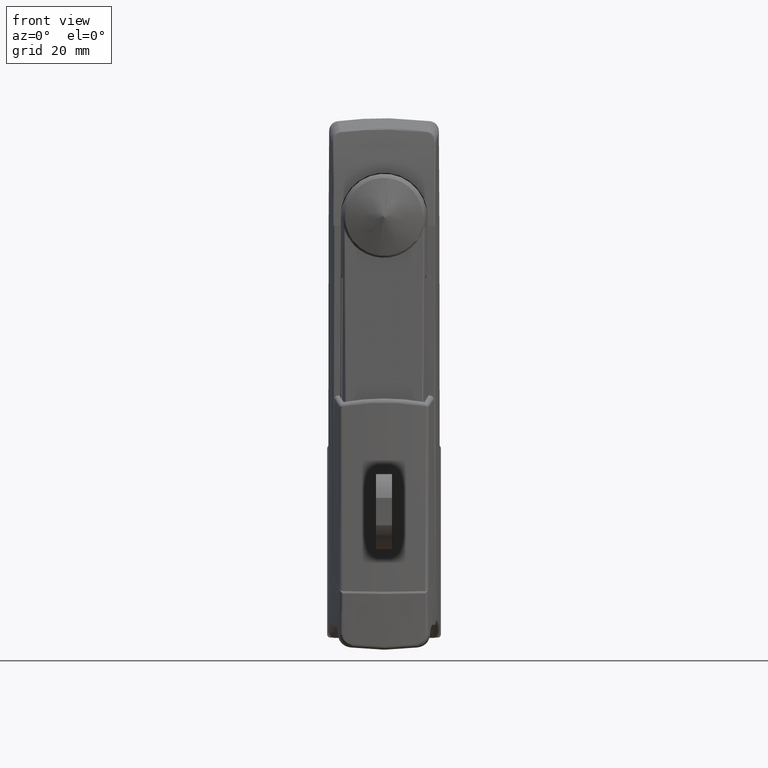
[diagram: clean part render]
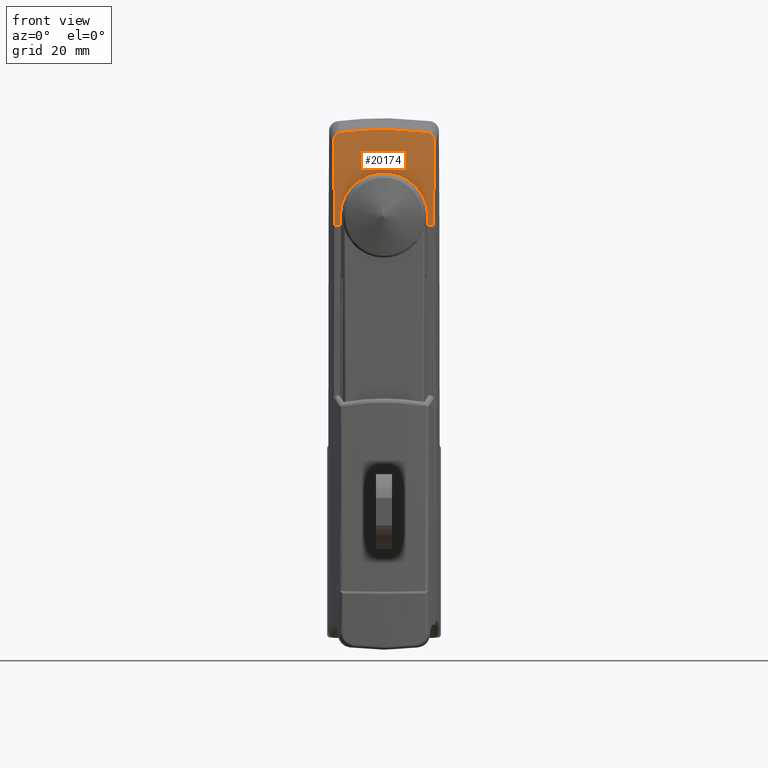
[diagram: same view with one face highlighted and labeled with its STEP entity id]
A machine part, front view. The second image highlights one B-rep face of the part: STEP entity #20174.
In plain terms, the highlighted face is a freeform B-spline surface patch.
Its self-contained STEP definition (entity closure, byte-faithful):
#13841=CARTESIAN_POINT('',(-12.441076893168200,-13.500000000000000,-2.517986E-013));
#13842=VERTEX_POINT('',#13841);
#13843=CARTESIAN_POINT('',(-12.604473546541300,-13.499300596486400,-2.741120213272555));
#13844=VERTEX_POINT('',#13843);
#13845=CARTESIAN_POINT('',(-12.441076893168200,-13.500000000000000,-2.517986E-013));
#13846=CARTESIAN_POINT('',(-12.496062418305049,-13.499600391658721,-0.913675699919689));
#13847=CARTESIAN_POINT('',(-12.550267995340629,-13.499434582657599,-1.827397951766694));
#13848=CARTESIAN_POINT('',(-12.604473546541300,-13.499300596486400,-2.741120213272555));
#13849=QUASI_UNIFORM_CURVE('',3,(#13845,#13846,#13847,#13848),.UNSPECIFIED.,.F.,.U.);
#13850=EDGE_CURVE('',#13842,#13844,#13849,.T.);
#13905=CARTESIAN_POINT('',(-12.441785726196020,13.499994861165360,-0.011779155682424));
#13906=VERTEX_POINT('',#13905);
#13907=CARTESIAN_POINT('',(-12.441076893168200,-13.500000000000000,-2.517986E-013));
#13908=CARTESIAN_POINT('',(-12.414252144722440,-13.500000000000011,0.445737687548453));
#13909=CARTESIAN_POINT('',(-12.387466372577190,-13.477981251342619,0.887720867682708));
#13910=CARTESIAN_POINT('',(-12.333803033641800,-13.391445507905210,1.764430264778949));
#13911=CARTESIAN_POINT('',(-12.306925510421090,-13.326924183553119,2.199155745726576));
#13912=CARTESIAN_POINT('',(-12.252938259727150,-13.155649267866769,3.061386373689502));
#13913=CARTESIAN_POINT('',(-12.225828475865200,-13.048897323626690,3.488891798224023));
#13914=CARTESIAN_POINT('',(-12.191726640621869,-12.888470168202920,4.018655519229677));
#13915=CARTESIAN_POINT('',(-12.184895618329460,-12.855032269994711,4.124376835188018));
#13916=CARTESIAN_POINT('',(-12.171210836618140,-12.785423876305771,4.335351801691670));
#13917=CARTESIAN_POINT('',(-12.164348582782759,-12.749206398792881,4.440735209422015));
#13918=CARTESIAN_POINT('',(-12.143789221727401,-12.636755489018860,4.755205853339946));
#13919=CARTESIAN_POINT('',(-12.130150198148559,-12.556909809155529,4.962147987044618));
#13920=CARTESIAN_POINT('',(-12.089422544274839,-12.303035813624030,5.575024320222656));
#13921=CARTESIAN_POINT('',(-12.035619737726730,-11.926373351094760,6.371030094525832));
#13922=CARTESIAN_POINT('',(-11.982796827669761,-11.474821152400320,7.125507671422891));
#13923=CARTESIAN_POINT('',(-11.943592080778631,-11.107795524635760,7.675641575572165));
#13924=CARTESIAN_POINT('',(-11.930593128195749,-10.980718464505260,7.856394275046117));
#13925=CARTESIAN_POINT('',(-11.911209492823019,-10.782886788211281,8.123523235828444));
#13926=CARTESIAN_POINT('',(-11.904767450880071,-10.715739648572120,8.211899229285896));
#13927=CARTESIAN_POINT('',(-11.891923983209940,-10.579012909516820,8.387302965089747));
#13928=CARTESIAN_POINT('',(-11.885514550365279,-10.509342078223220,8.474438445230355));
#13929=CARTESIAN_POINT('',(-11.853732871074630,-10.156600395826739,8.904578286773209));
#13930=CARTESIAN_POINT('',(-11.829075599020509,-9.859630427373491,9.232095379348401));
#13931=CARTESIAN_POINT('',(-11.781405591018579,-9.237055632552394,9.854983536206815));
#13932=CARTESIAN_POINT('',(-11.758392966244440,-8.911448423107171,10.150351923204401));
#13933=CARTESIAN_POINT('',(-11.714200205685110,-8.231662354058360,10.709028529767620));
#13934=CARTESIAN_POINT('',(-11.693019843875151,-7.877485156696547,10.972338605241159));
#13935=CARTESIAN_POINT('',(-11.667857399494009,-7.416426046130428,11.280910263855329));
#13936=CARTESIAN_POINT('',(-11.662890771010931,-7.323295191857604,11.341593890238981));
#13937=CARTESIAN_POINT('',(-11.653094305644560,-7.135174450511948,11.460876493486539));
#13938=CARTESIAN_POINT('',(-11.648264467261210,-7.040175856653471,11.519474770056860));
#13939=CARTESIAN_POINT('',(-11.634066938907880,-6.753991320983737,11.691154841092841));
#13940=CARTESIAN_POINT('',(-11.624963107805851,-6.561088898465243,11.800466065578410));
#13941=CARTESIAN_POINT('',(-11.598756971722430,-5.976159698507789,12.113259794607600));
#13942=CARTESIAN_POINT('',(-11.566759260552990,-5.179691809514877,12.490016894328241));
#13943=CARTESIAN_POINT('',(-11.540978909739319,-4.350590750346052,12.787402874228629));
#13944=CARTESIAN_POINT('',(-11.524146069242910,-3.716356621535458,12.980274322901510));
#13945=CARTESIAN_POINT('',(-11.518952685101249,-3.502873520863567,13.039527859132940));
#13946=CARTESIAN_POINT('',(-11.509435868369991,-3.071688990839381,13.147780665794031));
#13947=CARTESIAN_POINT('',(-11.505104482270291,-2.853440414598430,13.196869518427221));
#13948=CARTESIAN_POINT('',(-11.493582405592910,-2.198906821494902,13.327143652508990));
#13949=CARTESIAN_POINT('',(-11.487821089226321,-1.761425580655634,13.391848004033580));
#13950=CARTESIAN_POINT('',(-11.480120734162760,-0.884275104947150,13.478214665826370));
#13951=CARTESIAN_POINT('',(-11.478181844318421,-0.444605720709777,13.499874027802010));
#13952=CARTESIAN_POINT('',(-11.478159418465800,0.436922492519624,13.500124879012850));
#13953=CARTESIAN_POINT('',(-11.480075705780440,0.878781162329847,13.478719508647590));
#13954=CARTESIAN_POINT('',(-11.484932831433079,1.432513627495197,13.424242555998999));
#13955=CARTESIAN_POINT('',(-11.486028937713421,1.543459853847605,13.411941487358410));
#13956=CARTESIAN_POINT('',(-11.488462478148801,1.764873197774957,13.384605536830010));
#13957=CARTESIAN_POINT('',(-11.492468627647010,2.095798290109252,13.339569457998129));
#13958=CARTESIAN_POINT('',(-11.497523685494389,2.423182128504444,13.282583272837041));
#13959=CARTESIAN_POINT('',(-11.508988659280851,3.073309365635537,13.152949846103461));
#13960=CARTESIAN_POINT('',(-11.527884675727369,3.927793048614036,12.938416522241280));
#13961=CARTESIAN_POINT('',(-11.553625846099850,4.757883489473850,12.641534228385710));
#13962=CARTESIAN_POINT('',(-11.575401577124859,5.371155697932156,12.387479453273970));
#13963=CARTESIAN_POINT('',(-11.583072235436420,5.574027726099676,12.297552968636380));
#13964=CARTESIAN_POINT('',(-11.595188429240769,5.875962834881095,12.154647641541590));
#13965=CARTESIAN_POINT('',(-11.599333245401320,5.976308412841293,12.105623963519911));
#13966=CARTESIAN_POINT('',(-11.607779369113100,6.175139502458459,12.005417357040210));
#13967=CARTESIAN_POINT('',(-11.612085037108439,6.273739450039710,11.954183269236010));
#13968=CARTESIAN_POINT('',(-11.634013275017310,6.762705644385799,11.692419831277791));
#13969=CARTESIAN_POINT('',(-11.652832340215079,7.141001322415601,11.465153151335400));
#13970=CARTESIAN_POINT('',(-11.692740318829300,7.872478733228609,10.975778572164280));
#13971=CARTESIAN_POINT('',(-11.713829438294150,8.225659198101274,10.713668921278691));
#13972=CARTESIAN_POINT('',(-11.758072079991610,8.906807708047539,10.154454561912511));
#13973=CARTESIAN_POINT('',(-11.781225464985321,9.234778054755710,9.857353052236038));
#13974=CARTESIAN_POINT('',(-11.811376248289790,9.628456313169689,9.463362904258547));
#13975=CARTESIAN_POINT('',(-11.817457275980530,9.706244272720840,9.383558334592900));
#13976=CARTESIAN_POINT('',(-11.829673484373769,9.859375969274611,9.222529501005912));
#13977=CARTESIAN_POINT('',(-11.848098751003750,10.085663814261880,8.978599561839989));
#13978=CARTESIAN_POINT('',(-11.866811652959781,10.301834277159500,8.727586899909579));
#13979=CARTESIAN_POINT('',(-11.904587898517731,10.720885507383491,8.216256094822064));
#13980=CARTESIAN_POINT('',(-11.930236919169451,10.982564756285059,7.862983426025016));
#13981=CARTESIAN_POINT('',(-11.982348817039981,11.470827024866839,7.131855603524474));
#13982=CARTESIAN_POINT('',(-12.008811709150020,11.697411113578170,6.754001201450973));
#13983=CARTESIAN_POINT('',(-12.049087307138500,12.010409838658230,6.168390815664765));
#13984=CARTESIAN_POINT('',(-12.062619102681531,12.110318787578260,5.969908582333026));
#13985=CARTESIAN_POINT('',(-12.089842506512420,12.300702187714760,5.567077806833104));
#13986=CARTESIAN_POINT('',(-12.103438561285969,12.390515581322660,5.364145627205898));
#13987=CARTESIAN_POINT('',(-12.144183727770841,12.644158483120320,4.750894123975366));
#13988=CARTESIAN_POINT('',(-12.171288394276679,12.792228214941810,4.336130312759088));
#13989=CARTESIAN_POINT('',(-12.225438165321920,13.047153711042400,3.494983380906753));
#13990=CARTESIAN_POINT('',(-12.252483346048241,13.154008284917630,3.068599929658487));
#13991=CARTESIAN_POINT('',(-12.293084300569490,13.283109660842261,2.420239163808920));
#13992=CARTESIAN_POINT('',(-12.306623830703771,13.320937542342190,2.202652083566240));
#13993=CARTESIAN_POINT('',(-12.326954845641280,13.369751060183660,1.874038390954927));
#13994=CARTESIAN_POINT('',(-12.333735492997810,13.384700232474550,1.764128142465748));
#13995=CARTESIAN_POINT('',(-12.347306497835890,13.411926982491281,1.543555322159270));
#13996=CARTESIAN_POINT('',(-12.354103086026401,13.424213853387300,1.432790800139735));
#13997=CARTESIAN_POINT('',(-12.388027086102280,13.478749706204869,0.878532465269332));
#13998=CARTESIAN_POINT('',(-12.414964257310411,13.500383780771280,0.433958452592675));
#13999=CARTESIAN_POINT('',(-12.441785726191799,13.499994861165360,-0.011779155682563));
#14000=B_SPLINE_CURVE_WITH_KNOTS('',3,(#13907,#13908,#13909,#13910,#13911,#13912,#13913,#13914,#13915,#13916,#13917,#13918,#13919,#13920,#13921,#13922,#13923,#13924,#13925,#13926,#13927,#13928,#13929,#13930,#13931,#13932,#13933,#13934,#13935,#13936,#13937,#13938,#13939,#13940,#13941,#13942,#13943,#13944,#13945,#13946,#13947,#13948,#13949,#13950,#13951,#13952,#13953,#13954,#13955,#13956,#13957,#13958,#13959,#13960,#13961,#13962,#13963,#13964,#13965,#13966,#13967,#13968,#13969,#13970,#13971,#13972,#13973,#13974,#13975,#13976,#13977,#13978,#13979,#13980,#13981,#13982,#13983,#13984,#13985,#13986,#13987,#13988,#13989,#13990,#13991,#13992,#13993,#13994,#13995,#13996,#13997,#13998,#13999),.UNSPECIFIED.,.F.,.U.,(4,2,2,2,2,2,2,1,2,2,2,2,2,2,2,2,2,2,1,2,2,2,2,2,2,2,1,2,1,2,2,2,2,2,2,2,2,1,2,2,2,2,2,2,2,2,2,2,4),(0.0,0.031250000000000,0.062500000000000,0.093750000000000,0.101562500000000,0.109375000000000,0.125000000000000,0.156250000000000,0.187500000000000,0.203125000000000,0.210937500000000,0.218750000000000,0.250000000000000,0.281250000000000,0.312500000000000,0.320312500000000,0.328125000000000,0.343750000000000,0.375000000000000,0.406250000000000,0.421875000000000,0.437499999999999,0.468749999999999,0.499999999999999,0.531249999999999,0.539062499999999,0.546874999999999,0.562499999999999,0.593749999999999,0.624999999999999,0.640624999999999,0.648437499999999,0.656249999999999,0.687499999999999,0.718749999999998,0.749999999999998,0.757812499999998,0.765624999999998,0.781249999999998,0.812499999999999,0.843749999999999,0.859374999999999,0.874999999999999,0.906249999999999,0.937500000000000,0.953125000000000,0.960937500000000,0.968750000000000,1.0),.UNSPECIFIED.);
#14001=EDGE_CURVE('',#13842,#13906,#14000,.T.);
#14031=CARTESIAN_POINT('',(-12.604473546544220,13.499300596486400,-2.741120213272550));
#14032=VERTEX_POINT('',#14031);
#14033=CARTESIAN_POINT('',(-12.604473546544220,13.499300596486400,-2.741120213272550));
#14034=CARTESIAN_POINT('',(-12.550500935616601,13.499434006872010,-1.831324536929526));
#14035=CARTESIAN_POINT('',(-12.496528299406620,13.499598967070799,-0.921528870118750));
#14036=CARTESIAN_POINT('',(-12.441785726191799,13.499994861165360,-0.011779155682567));
#14037=QUASI_UNIFORM_CURVE('',3,(#14033,#14034,#14035,#14036),.UNSPECIFIED.,.F.,.U.);
#14038=EDGE_CURVE('',#14032,#13906,#14037,.T.);
#14486=CARTESIAN_POINT('',(-10.417136814291799,-15.503356224841900,23.088987094582549));
#14487=VERTEX_POINT('',#14486);
#14501=CARTESIAN_POINT('',(-12.604473546541300,-15.310058754993280,-2.741120213272555));
#14502=VERTEX_POINT('',#14501);
#14503=CARTESIAN_POINT('',(-12.604473546541300,-15.310058754993280,-2.741120213272555));
#14504=CARTESIAN_POINT('',(-12.348544517713250,-15.321833988952170,1.572977620361825));
#14505=CARTESIAN_POINT('',(-12.092543342613290,-15.333546171655620,5.887070754894667));
#14506=CARTESIAN_POINT('',(-11.585845085509259,-15.374315727719191,12.349623906542901));
#14507=CARTESIAN_POINT('',(-11.396470550018121,-15.391771147511450,14.502678259580360));
#14508=CARTESIAN_POINT('',(-10.957104753951549,-15.438111285098930,18.801493855034892));
#14509=CARTESIAN_POINT('',(-10.707093263011890,-15.466999861549510,20.947488058295221));
#14510=CARTESIAN_POINT('',(-10.417136814291799,-15.503356224841900,23.088987094582549));
#14511=B_SPLINE_CURVE_WITH_KNOTS('',3,(#14503,#14504,#14505,#14506,#14507,#14508,#14509,#14510),.UNSPECIFIED.,.F.,.U.,(4,2,2,4),(0.0,0.500000000000000,0.750000000000000,1.0),.UNSPECIFIED.);
#14512=EDGE_CURVE('',#14502,#14487,#14511,.T.);
#14769=CARTESIAN_POINT('',(-10.006475827347540,-13.463598780435740,25.938795160701300));
#14770=VERTEX_POINT('',#14769);
#14784=CARTESIAN_POINT('',(-10.417136814291799,-15.503356224841900,23.088987094582549));
#14785=CARTESIAN_POINT('',(-10.395452922897640,-15.506074898858270,23.249135395227441));
#14786=CARTESIAN_POINT('',(-10.373668517732620,-15.498733029071561,23.408351876220419));
#14787=CARTESIAN_POINT('',(-10.340856117206060,-15.471885559840580,23.645713058888859));
#14788=CARTESIAN_POINT('',(-10.329896160309881,-15.460286420895841,23.724588557550060));
#14789=CARTESIAN_POINT('',(-10.307935840207470,-15.431510510489030,23.881825058006090));
#14790=CARTESIAN_POINT('',(-10.296938264572240,-15.414315951530490,23.960163066730821));
#14791=CARTESIAN_POINT('',(-10.264282945576980,-15.354605376506120,24.191617087809039));
#14792=CARTESIAN_POINT('',(-10.242832226095240,-15.303882134131131,24.342107279724580));
#14793=CARTESIAN_POINT('',(-10.211260112448951,-15.209784703400230,24.561562614756021));
#14794=CARTESIAN_POINT('',(-10.200828545992250,-15.175369021767960,24.633724328865870));
#14795=CARTESIAN_POINT('',(-10.180238739613500,-15.100128718778761,24.775513973003079));
#14796=CARTESIAN_POINT('',(-10.170186058837050,-15.059693729126680,24.844415793238301));
#14797=CARTESIAN_POINT('',(-10.140805622859141,-14.929664824734850,25.044948364036820));
#14798=CARTESIAN_POINT('',(-10.122244800284120,-14.831446405557150,25.170476313837732));
#14799=CARTESIAN_POINT('',(-10.096300115388090,-14.664244574793999,25.344724025922361));
#14800=CARTESIAN_POINT('',(-10.088067394413761,-14.605768632018171,25.399798300663608));
#14801=CARTESIAN_POINT('',(-10.072583541832140,-14.483966049605201,25.503057147347050));
#14802=CARTESIAN_POINT('',(-10.065314178428020,-14.420524697851620,25.551364066493839));
#14803=CARTESIAN_POINT('',(-10.051784016326121,-14.288332549910701,25.641036055306170));
#14804=CARTESIAN_POINT('',(-10.045522893257051,-14.219583335465900,25.682403189431390));
#14805=CARTESIAN_POINT('',(-10.034105103379980,-14.076375124450470,25.757675168950090));
#14806=CARTESIAN_POINT('',(-10.029048064547951,-14.003132746495220,25.790923974404780));
#14807=CARTESIAN_POINT('',(-10.015893402989519,-13.779368369212911,25.877277371018319));
#14808=CARTESIAN_POINT('',(-10.009765352074110,-13.624496862799470,25.917310796196301));
#14809=CARTESIAN_POINT('',(-10.006475827347520,-13.463598780435740,25.938795160701300));
#14810=B_SPLINE_CURVE_WITH_KNOTS('',3,(#14784,#14785,#14786,#14787,#14788,#14789,#14790,#14791,#14792,#14793,#14794,#14795,#14796,#14797,#14798,#14799,#14800,#14801,#14802,#14803,#14804,#14805,#14806,#14807,#14808,#14809),.UNSPECIFIED.,.F.,.U.,(4,2,2,2,2,2,2,2,2,2,2,2,4),(0.0,0.124999999999998,0.187499999999997,0.249999999999996,0.374999999999994,0.437499999999995,0.499999999999995,0.624999999999996,0.687499999999997,0.749999999999997,0.812499999999997,0.874999999999998,1.0),.UNSPECIFIED.);
#14811=EDGE_CURVE('',#14487,#14770,#14810,.T.);
#15123=CARTESIAN_POINT('',(-10.006475826175301,13.463598723099359,25.938795168357299));
#15124=VERTEX_POINT('',#15123);
#15138=CARTESIAN_POINT('',(-10.006475827347540,-13.463598780435740,25.938795160701300));
#15139=CARTESIAN_POINT('',(-9.960806492308553,-11.229808478995670,26.237068231199132));
#15140=CARTESIAN_POINT('',(-9.925708758808108,-8.990909350626337,26.460899215403991));
#15141=CARTESIAN_POINT('',(-9.890424655944223,-5.624881558303835,26.684981170970708));
#15142=CARTESIAN_POINT('',(-9.881546653959738,-4.501592406591473,26.741062221971038));
#15143=CARTESIAN_POINT('',(-9.869687614024887,-2.252446358531091,26.815900076570490));
#15144=CARTESIAN_POINT('',(-9.866706182471329,-1.126414455465795,26.834657080539291));
#15145=CARTESIAN_POINT('',(-9.866709081689198,2.254474013018780,26.834638822070080));
#15146=CARTESIAN_POINT('',(-9.878667165394589,4.503332921698160,26.759650640243720));
#15147=CARTESIAN_POINT('',(-9.925710682928568,8.991002133226283,26.460886889149322));
#15148=CARTESIAN_POINT('',(-9.960806512936891,11.229809479070530,26.237068096374831));
#15149=CARTESIAN_POINT('',(-10.006475826175301,13.463598723099359,25.938795168357299));
#15150=B_SPLINE_CURVE_WITH_KNOTS('',3,(#15138,#15139,#15140,#15141,#15142,#15143,#15144,#15145,#15146,#15147,#15148,#15149),.UNSPECIFIED.,.F.,.U.,(4,2,2,2,2,4),(0.0,0.250000000000000,0.375000000000000,0.500000000000000,0.750000000000000,1.0),.UNSPECIFIED.);
#15151=EDGE_CURVE('',#14770,#15124,#15150,.T.);
#15395=CARTESIAN_POINT('',(-10.417136811681379,15.503356159998249,23.088987113862149));
#15396=VERTEX_POINT('',#15395);
#15410=CARTESIAN_POINT('',(-10.006475826175301,13.463598723099359,25.938795168357299));
#15411=CARTESIAN_POINT('',(-10.008126599953609,13.544341796485741,25.928013724682401));
#15412=CARTESIAN_POINT('',(-10.010525590981130,13.624477268329160,25.912339247582072));
#15413=CARTESIAN_POINT('',(-10.016672055514061,13.780494891414740,25.872115841644899));
#15414=CARTESIAN_POINT('',(-10.020422585502160,13.856707465813130,25.847546923239420));
#15415=CARTESIAN_POINT('',(-10.029215492214210,14.005673474009880,25.789823615283101));
#15416=CARTESIAN_POINT('',(-10.034258029678000,14.078426509249740,25.756668238332299));
#15417=CARTESIAN_POINT('',(-10.042769894627650,14.184984883224400,25.700551742098060));
#15418=CARTESIAN_POINT('',(-10.045765447176290,14.220075058592110,25.680780465709230));
#15419=CARTESIAN_POINT('',(-10.052072583803330,14.289391792650980,25.639093457698952));
#15420=CARTESIAN_POINT('',(-10.055385502896851,14.323613807558029,25.617168584593909));
#15421=CARTESIAN_POINT('',(-10.072498654759240,14.490323269727980,25.503741768271379));
#15422=CARTESIAN_POINT('',(-10.088093743817780,14.611649380979699,25.399850759067760));
#15423=CARTESIAN_POINT('',(-10.109606394887919,14.749920903845590,25.255354322645111));
#15424=CARTESIAN_POINT('',(-10.114010941370980,14.776899168021281,25.225716049019180));
#15425=CARTESIAN_POINT('',(-10.123018915389631,14.829520621573851,25.164979731978331));
#15426=CARTESIAN_POINT('',(-10.127634311724981,14.855226101427791,25.133800598846399));
#15427=CARTESIAN_POINT('',(-10.141678266648251,14.929857117530450,25.038728997547871));
#15428=CARTESIAN_POINT('',(-10.151278446185110,14.976199384138630,24.973480565559090));
#15429=CARTESIAN_POINT('',(-10.180703834015921,15.105851627558501,24.772600204070059));
#15430=CARTESIAN_POINT('',(-10.201148398488170,15.179854275461960,24.631869886862280));
#15431=CARTESIAN_POINT('',(-10.232843292595589,15.274004148509750,24.411528443795561));
#15432=CARTESIAN_POINT('',(-10.243629874671861,15.302665697194920,24.336186961820140));
#15433=CARTESIAN_POINT('',(-10.265241203088980,15.353791648003099,24.184481009025259));
#15434=CARTESIAN_POINT('',(-10.276063863866311,15.376289945051649,24.108135528946772));
#15435=CARTESIAN_POINT('',(-10.308563086012290,15.435268386994080,23.877728242998430));
#15436=CARTESIAN_POINT('',(-10.330269637618921,15.463283978634310,23.722303797456139));
#15437=CARTESIAN_POINT('',(-10.373698213945950,15.498696276383310,23.408127628569890));
#15438=CARTESIAN_POINT('',(-10.395420658549360,15.506078879069911,23.249373686295051));
#15439=CARTESIAN_POINT('',(-10.417136811681360,15.503356159998249,23.088987113862149));
#15440=B_SPLINE_CURVE_WITH_KNOTS('',3,(#15410,#15411,#15412,#15413,#15414,#15415,#15416,#15417,#15418,#15419,#15420,#15421,#15422,#15423,#15424,#15425,#15426,#15427,#15428,#15429,#15430,#15431,#15432,#15433,#15434,#15435,#15436,#15437,#15438,#15439),.UNSPECIFIED.,.F.,.U.,(4,2,2,2,2,2,2,2,2,2,2,2,2,2,4),(0.0,0.062500000000004,0.125000000000009,0.187500000000013,0.218750000000015,0.250000000000016,0.375000000000019,0.406250000000020,0.437500000000020,0.500000000000018,0.625000000000015,0.687500000000013,0.750000000000010,0.875000000000005,1.0),.UNSPECIFIED.);
#15441=EDGE_CURVE('',#15124,#15396,#15440,.T.);
#15734=CARTESIAN_POINT('',(-12.604473546541300,15.310058674246349,-2.741120213272550));
#15735=VERTEX_POINT('',#15734);
#15759=CARTESIAN_POINT('',(-10.417136811681379,15.503356159998249,23.088987113862149));
#15760=CARTESIAN_POINT('',(-10.997087380819890,15.430638705772710,18.805710817215449));
#15761=CARTESIAN_POINT('',(-11.416810911066291,15.387917755619981,14.505360597004090));
#15762=CARTESIAN_POINT('',(-12.092517177250009,15.333546794685599,5.887570831461082));
#15763=CARTESIAN_POINT('',(-12.348529697219981,15.321834592016330,1.573227443753069));
#15764=CARTESIAN_POINT('',(-12.604473546541300,15.310058674246349,-2.741120213272550));
#15765=B_SPLINE_CURVE_WITH_KNOTS('',3,(#15759,#15760,#15761,#15762,#15763,#15764),.UNSPECIFIED.,.F.,.U.,(4,2,4),(0.0,0.500000000000000,1.0),.UNSPECIFIED.);
#15766=EDGE_CURVE('',#15396,#15735,#15765,.T.);
#20137=CARTESIAN_POINT('',(-9.819536452421829,15.899568532011680,27.130400687891370));
#20138=CARTESIAN_POINT('',(-9.819536452421829,5.299856157045928,27.130400687891370));
#20139=CARTESIAN_POINT('',(-9.819536452421829,-5.299856217919846,27.130400687891370));
#20140=CARTESIAN_POINT('',(-9.819536452421829,-15.899568592885570,27.130400687891370));
#20141=CARTESIAN_POINT('',(-11.438933236599791,15.674135397600089,17.074917477212569));
#20142=CARTESIAN_POINT('',(-11.438933236599780,5.224711775038731,17.074917477212569));
#20143=CARTESIAN_POINT('',(-11.438933236599780,-5.224711847522769,17.074917477212558));
#20144=CARTESIAN_POINT('',(-11.438933236599791,-15.674135470084099,17.074917477212569));
#20145=CARTESIAN_POINT('',(-12.025365309483719,15.645726292268940,7.019015713055770));
#20146=CARTESIAN_POINT('',(-12.025365309483719,5.215242071876081,7.019015713055770));
#20147=CARTESIAN_POINT('',(-12.025365309483711,-5.215242148516869,7.019015713055772));
#20148=CARTESIAN_POINT('',(-12.025365309483719,-15.645726368909720,7.019015713055771));
#20149=CARTESIAN_POINT('',(-12.622019278355710,15.615367498714750,-3.036881909226608));
#20150=CARTESIAN_POINT('',(-12.622019278355710,5.205122472614493,-3.036881909226612));
#20151=CARTESIAN_POINT('',(-12.622019278355710,-5.205122553485810,-3.036881909226612));
#20152=CARTESIAN_POINT('',(-12.622019278355710,-15.615367579586080,-3.036881909226612));
#20153=B_SPLINE_SURFACE_WITH_KNOTS('',3,3,((#20137,#20141,#20145,#20149),(#20138,#20142,#20146,#20150),(#20139,#20143,#20147,#20151),(#20140,#20144,#20148,#20152)),.UNSPECIFIED.,.F.,.F.,.U.,(4,4),(4,4),(0.0,31.799137124897278),(0.0,30.562625505451230),.UNSPECIFIED.);
#20154=CARTESIAN_POINT('',(-12.604473546541300,15.310058674246349,-2.741120213272550));
#20155=CARTESIAN_POINT('',(-12.604473546544220,13.499300596486400,-2.741120213272550));
#20156=QUASI_UNIFORM_CURVE('',1,(#20154,#20155),.UNSPECIFIED.,.F.,.U.);
#20157=EDGE_CURVE('',#15735,#14032,#20156,.T.);
#20158=ORIENTED_EDGE('',*,*,#20157,.T.);
#20159=ORIENTED_EDGE('',*,*,#14038,.T.);
#20160=ORIENTED_EDGE('',*,*,#14001,.F.);
#20161=ORIENTED_EDGE('',*,*,#13850,.T.);
#20162=CARTESIAN_POINT('',(-12.604473546541300,-13.499300596486400,-2.741120213272555));
#20163=CARTESIAN_POINT('',(-12.604473546541300,-15.310058754993280,-2.741120213272555));
#20164=QUASI_UNIFORM_CURVE('',1,(#20162,#20163),.UNSPECIFIED.,.F.,.U.);
#20165=EDGE_CURVE('',#13844,#14502,#20164,.T.);
#20166=ORIENTED_EDGE('',*,*,#20165,.T.);
#20167=ORIENTED_EDGE('',*,*,#14512,.T.);
#20168=ORIENTED_EDGE('',*,*,#14811,.T.);
#20169=ORIENTED_EDGE('',*,*,#15151,.T.);
#20170=ORIENTED_EDGE('',*,*,#15441,.T.);
#20171=ORIENTED_EDGE('',*,*,#15766,.T.);
#20172=EDGE_LOOP('',(#20158,#20159,#20160,#20161,#20166,#20167,#20168,#20169,#20170,#20171));
#20173=FACE_OUTER_BOUND('',#20172,.T.);
#20174=ADVANCED_FACE('',(#20173),#20153,.F.);